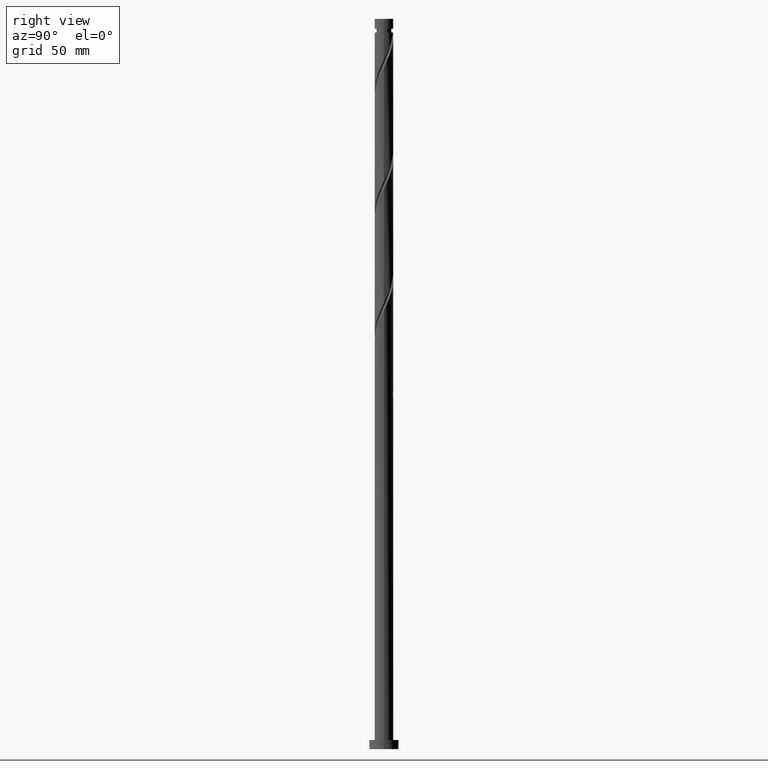
[diagram: clean part render]
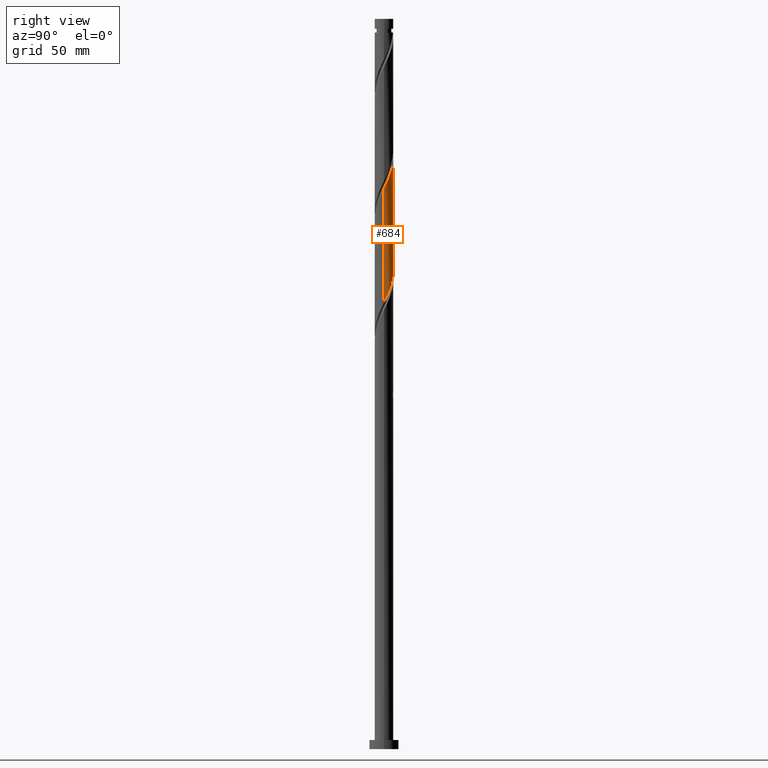
[diagram: same view with one face highlighted and labeled with its STEP entity id]
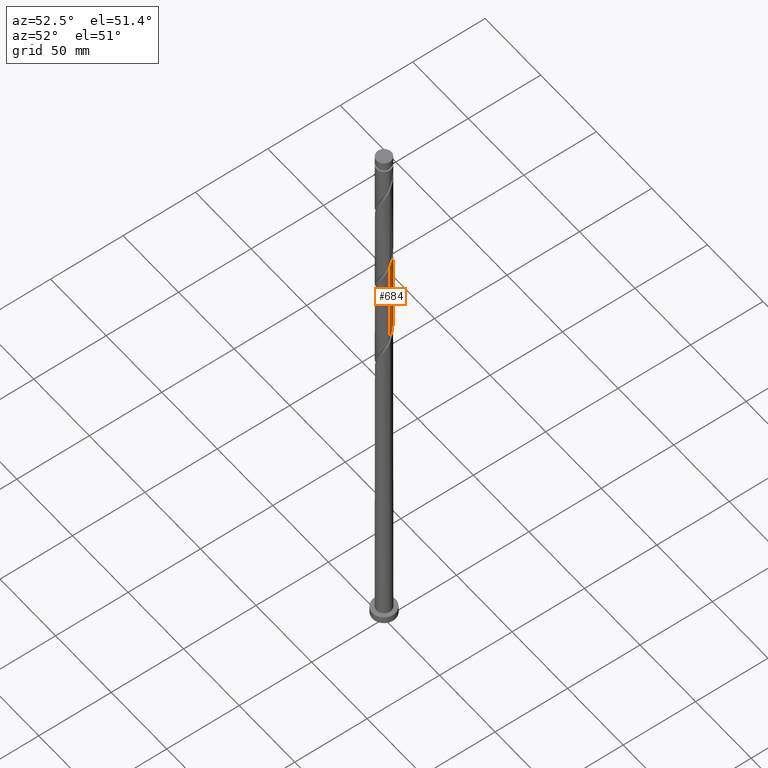
[diagram: same view with one face highlighted and labeled with its STEP entity id]
A machine part, right view. The second image highlights one B-rep face of the part: STEP entity #684.
A second angle (auxiliary view) of the same face is appended — the face is thin or edge-on in the first view.
In plain terms, the highlighted cylindrical surface (edge-blend (fillet) strip) has radius 5.1 mm, axis along (-0, -0, -1).
Its self-contained STEP definition (entity closure, byte-faithful):
#17 = CARTESIAN_POINT ( 'NONE',  ( -3.396524602074726396, 3.841998243563403914, 331.4106322817596038 ) ) ;
#20 = CARTESIAN_POINT ( 'NONE',  ( -1.629005779183733349, 4.862475711757238805, 264.7439656150929181 ) ) ;
#31 = CARTESIAN_POINT ( 'NONE',  ( 4.665561090286799661, 2.128349028905950568, 249.1884100595374036 ) ) ;
#93 = DIRECTION ( 'NONE',  ( -1.000000000000000000, 0.000000000000000000, 0.000000000000000000 ) ) ;
#125 = CARTESIAN_POINT ( 'NONE',  ( 4.439763080642554094, 2.509682009291899440, 312.5217433928706896 ) ) ;
#145 = ORIENTED_EDGE ( 'NONE', *, *, #837, .F. ) ;
#168 = CARTESIAN_POINT ( 'NONE',  ( -3.465917878084596726, 3.779516257197027773, 269.1884100595373752 ) ) ;
#229 = CARTESIAN_POINT ( 'NONE',  ( 4.835838561039002670, 1.620081915079673918, 248.0772989484262609 ) ) ;
#238 = FACE_OUTER_BOUND ( 'NONE', #1738, .T. ) ;
#245 = CARTESIAN_POINT ( 'NONE',  ( -5.100000000000010303, -8.580390451461796036E-15, 340.3963001493492584 ) ) ;
#268 = CARTESIAN_POINT ( 'NONE',  ( 5.100000000000010303, 3.617516531800965792E-15, 307.0629668160158872 ) ) ;
#269 = EDGE_CURVE ( 'NONE', #975, #363, #1783, .T. ) ;
#279 = CARTESIAN_POINT ( 'NONE',  ( -5.100000000000011191, 0.2905660609767968805, 339.7907088399646227 ) ) ;
#283 = CARTESIAN_POINT ( 'NONE',  ( 1.540198153706611839, 4.891331058450428593, 258.0772989484262325 ) ) ;
#290 = CARTESIAN_POINT ( 'NONE',  ( -4.121098741290865952, 3.051864191043565544, 333.6328545039818323 ) ) ;
#313 = CARTESIAN_POINT ( 'NONE',  ( -5.100000000000010303, -8.580390451461796036E-15, 340.3963001493492584 ) ) ;
#314 = VECTOR ( 'NONE', #583, 1000.000000000000000 ) ;
#331 = CARTESIAN_POINT ( 'NONE',  ( -4.703541288989194769, 2.043044105940179822, 273.6328545039818323 ) ) ;
#363 = VERTEX_POINT ( 'NONE', #1777 ) ;
#373 = CARTESIAN_POINT ( 'NONE',  ( 5.066997856243808052, 0.5792518664800752060, 245.8550767262040324 ) ) ;
#382 = CARTESIAN_POINT ( 'NONE',  ( 4.121098741290860623, 3.051864191043555774, 251.4106322817596890 ) ) ;
#429 = CARTESIAN_POINT ( 'NONE',  ( 4.175984872295905426, 2.976319912643619947, 313.6328545039818891 ) ) ;
#431 = CARTESIAN_POINT ( 'NONE',  ( 0.4895762179909056155, 5.104668941549565631, 260.2995211706484611 ) ) ;
#444 = CARTESIAN_POINT ( 'NONE',  ( 3.758811671682789957, 3.446931217303477180, 252.5217433928707180 ) ) ;
#452 = CARTESIAN_POINT ( 'NONE',  ( -4.835838561039008887, 1.620081915079681245, 336.9661878373150330 ) ) ;
#466 = CARTESIAN_POINT ( 'NONE',  ( 0.5824425476983406957, 5.094908296983747142, 322.5217433928708033 ) ) ;
#479 = CARTESIAN_POINT ( 'NONE',  ( 4.703541288989208979, 2.043044105940178046, 311.4106322817596606 ) ) ;
#532 =( BOUNDED_CURVE ( )  B_SPLINE_CURVE ( 2, ( #268, #1236, #1682, #1539, #1427, #479, #125, #429, #1067, #787, #762, #1835, #1869, #778, #1413, #466, #1402, #1247, #1101, #909, #752, #1674, #900, #17, #2008, #290, #1570, #920, #452, #1704, #642, #279, #313 ),
 .UNSPECIFIED., .F., .T. ) 
 B_SPLINE_CURVE_WITH_KNOTS ( ( 3, 2, 2, 2, 2, 2, 2, 2, 2, 2, 2, 2, 2, 2, 2, 2, 3 ),
 ( 0.4295286012773114059, 0.4333333333333333481, 0.4416666666666666519, 0.4499999999999999556, 0.4583333333333333703, 0.4666666666666666741, 0.4749999999999999778, 0.4833333333333332815, 0.4916666666666666963, 0.5000000000000000000, 0.5083333333333333037, 0.5166666666666666075, 0.5250000000000000222, 0.5333333333333333259, 0.5416666666666667407, 0.5500000000000000444, 0.5545286012773116280 ),
 .UNSPECIFIED. ) 
 CURVE ( )  GEOMETRIC_REPRESENTATION_ITEM ( )  RATIONAL_B_SPLINE_CURVE ( ( 0.9066196499552303667, 0.9068171577856432020, 0.9090909090909421453, 0.9041108139711903080, 0.9090909090909421453, 0.9041108139711903080, 0.9090909090909421453, 0.9041108139711903080, 0.9090909090909421453, 0.9041108139711903080, 0.9090909090909421453, 0.9041108139711903080, 0.9090909090909421453, 0.9041108139711903080, 0.9090909090909421453, 0.9041108139711903080, 0.9090909090909421453, 0.9041108139711903080, 0.9090909090909421453, 0.9041108139711903080, 0.9090909090909421453, 0.9041108139711903080, 0.9090909090909421453, 0.9041108139711903080, 0.9090909090909421453, 0.9041108139711903080, 0.9090909090909421453, 0.9041108139711903080, 0.9090909090909421453, 0.9041108139711903080, 0.9090909090909421453, 0.9063845652764892513, 0.9066196499552303667 ) ) 
 REPRESENTATION_ITEM ( '' )  );
#553 = CARTESIAN_POINT ( 'NONE',  ( 0.000000000000000000, 0.000000000000000000, 400.0000000000000000 ) ) ;
#556 = CARTESIAN_POINT ( 'NONE',  ( -5.100000000000001421, 0.000000000000000000, 400.0000000000000000 ) ) ;
#559 = VERTEX_POINT ( 'NONE', #245 ) ;
#576 = VECTOR ( 'NONE', #1820, 1000.000000000000000 ) ;
#583 = DIRECTION ( 'NONE',  ( -0.000000000000000000, -0.000000000000000000, -1.000000000000000000 ) ) ;
#604 = CARTESIAN_POINT ( 'NONE',  ( 3.396524602074722399, 3.841998243563394144, 253.6328545039818039 ) ) ;
#622 = CARTESIAN_POINT ( 'NONE',  ( -5.099999999999999645, -6.517509123410059360E-15, 277.9805199697255489 ) ) ;
#642 = CARTESIAN_POINT ( 'NONE',  ( -5.066997856243816045, 0.5792518664800782036, 339.1884100595373184 ) ) ;
#684 = ADVANCED_FACE ( 'NONE', ( #238 ), #1497, .T. ) ;
#733 = CARTESIAN_POINT ( 'NONE',  ( 5.100000000000001421, 6.245698675651501825E-16, 400.0000000000000000 ) ) ;
#752 = CARTESIAN_POINT ( 'NONE',  ( -2.031852096560608611, 4.677774797668475593, 328.0772989484264031 ) ) ;
#754 = CARTESIAN_POINT ( 'NONE',  ( 2.960015320744665779, 4.153108390224945268, 254.7439656150929466 ) ) ;
#762 = CARTESIAN_POINT ( 'NONE',  ( 3.035145759683210098, 4.098522931188395724, 316.9661878373151467 ) ) ;
#778 = CARTESIAN_POINT ( 'NONE',  ( 1.629005779183740232, 4.862475711757246799, 320.2995211706485748 ) ) ;
#787 = CARTESIAN_POINT ( 'NONE',  ( 3.465917878084604720, 3.779516257197033546, 315.8550767262040040 ) ) ;
#837 = EDGE_CURVE ( 'NONE', #1462, #559, #532, .T. ) ;
#900 = CARTESIAN_POINT ( 'NONE',  ( -2.960015320744666223, 4.153108390224957702, 330.2995211706484042 ) ) ;
#909 = CARTESIAN_POINT ( 'NONE',  ( -1.540198153706609618, 4.891331058450441915, 326.9661878373150898 ) ) ;
#912 = CARTESIAN_POINT ( 'NONE',  ( 2.031852096560608611, 4.677774797668464934, 256.9661878373151467 ) ) ;
#920 = CARTESIAN_POINT ( 'NONE',  ( -4.665561090286807655, 2.128349028905955898, 335.8550767262040608 ) ) ;
#922 = CARTESIAN_POINT ( 'NONE',  ( -0.04643316485371556945, 5.099788619266650613, 261.4106322817596038 ) ) ;
#962 = CARTESIAN_POINT ( 'NONE',  ( -1.105724163441035079, 4.978692004370486757, 263.6328545039818323 ) ) ;
#975 = VERTEX_POINT ( 'NONE', #1717 ) ;
#995 = CARTESIAN_POINT ( 'NONE',  ( 5.099999999999998757, 0.2905660609768065394, 245.2527779457767849 ) ) ;
#1067 = CARTESIAN_POINT ( 'NONE',  ( 3.820951375190254407, 3.377918084920323416, 314.7439656150928613 ) ) ;
#1101 = CARTESIAN_POINT ( 'NONE',  ( -1.014887185848756035, 4.998000000000008214, 325.8550767262040040 ) ) ;
#1105 = CARTESIAN_POINT ( 'NONE',  ( -5.025530381258454860, 1.020477468193841775, 275.8550767262040608 ) ) ;
#1168 = CARTESIAN_POINT ( 'NONE',  ( 5.099999999999999645, 4.275246810310268444E-15, 244.6471866363922345 ) ) ;
#1172 = CARTESIAN_POINT ( 'NONE',  ( 5.100000000000010303, 3.617516531800965792E-15, 307.0629668160158872 ) ) ;
#1211 = LINE ( 'NONE', #733, #576 ) ;
#1230 = CARTESIAN_POINT ( 'NONE',  ( -0.5824425476983373651, 5.094908296983734708, 262.5217433928706896 ) ) ;
#1232 = ORIENTED_EDGE ( 'NONE', *, *, #269, .F. ) ;
#1236 = CARTESIAN_POINT ( 'NONE',  ( 5.100000000000011191, 0.2440043963624162204, 307.5715153415798682 ) ) ;
#1247 = CARTESIAN_POINT ( 'NONE',  ( -0.4895762179909013967, 5.104668941549578953, 324.7439656150929181 ) ) ;
#1251 = CARTESIAN_POINT ( 'NONE',  ( -5.076705030977432642, 0.4868942682435472569, 276.9661878373151467 ) ) ;
#1268 = ORIENTED_EDGE ( 'NONE', *, *, #1889, .T. ) ;
#1277 = CARTESIAN_POINT ( 'NONE',  ( -2.116689710232770416, 4.640002658468494801, 265.8550767262040040 ) ) ;
#1402 = CARTESIAN_POINT ( 'NONE',  ( 0.04643316485371956626, 5.099788619266663048, 323.6328545039817186 ) ) ;
#1407 = AXIS2_PLACEMENT_3D ( 'NONE', #553, #1507, #93 ) ;
#1413 = CARTESIAN_POINT ( 'NONE',  ( 1.105724163441041963, 4.978692004370493862, 321.4106322817596038 ) ) ;
#1427 = CARTESIAN_POINT ( 'NONE',  ( 4.864535835123834140, 1.531760787067009799, 310.2995211706485179 ) ) ;
#1429 = CARTESIAN_POINT ( 'NONE',  ( -2.604373641281807039, 4.417529605179755237, 266.9661878373152604 ) ) ;
#1462 = VERTEX_POINT ( 'NONE', #1172 ) ;
#1464 = CARTESIAN_POINT ( 'NONE',  ( 4.393329915788831030, 2.590106609974751617, 250.2995211706484611 ) ) ;
#1497 = CYLINDRICAL_SURFACE ( 'NONE', #1407, 5.100000000000001421 ) ;
#1507 = DIRECTION ( 'NONE',  ( -0.000000000000000000, -0.000000000000000000, -1.000000000000000000 ) ) ;
#1539 = CARTESIAN_POINT ( 'NONE',  ( 5.025530381258464629, 1.020477468193841997, 309.1884100595373752 ) ) ;
#1541 = CARTESIAN_POINT ( 'NONE',  ( 2.523506039414606050, 4.464218536886502164, 255.8550767262040608 ) ) ;
#1562 = CARTESIAN_POINT ( 'NONE',  ( -4.864535835123822594, 1.531760787067011131, 274.7439656150930318 ) ) ;
#1570 = CARTESIAN_POINT ( 'NONE',  ( -4.393329915788834583, 2.590106609974760055, 334.7439656150929750 ) ) ;
#1573 = CARTESIAN_POINT ( 'NONE',  ( -3.820951375190244637, 3.377918084920321196, 270.2995211706485179 ) ) ;
#1674 = CARTESIAN_POINT ( 'NONE',  ( -2.523506039414608271, 4.464218536886512823, 329.1884100595374889 ) ) ;
#1676 = CARTESIAN_POINT ( 'NONE',  ( 1.014887185848757811, 4.998000000000000220, 259.1884100595374321 ) ) ;
#1682 = CARTESIAN_POINT ( 'NONE',  ( 5.076705030977442412, 0.4868942682435424829, 308.0772989484262894 ) ) ;
#1704 = CARTESIAN_POINT ( 'NONE',  ( -5.006116031791213672, 1.111814801253408147, 338.0772989484262894 ) ) ;
#1707 = CARTESIAN_POINT ( 'NONE',  ( -4.175984872295892991, 2.976319912643616838, 271.4106322817596038 ) ) ;
#1717 = CARTESIAN_POINT ( 'NONE',  ( -5.099999999999999645, -6.517509123410059360E-15, 277.9805199697255489 ) ) ;
#1738 = EDGE_LOOP ( 'NONE', ( #145, #1268, #1232, #1836 ) ) ;
#1766 = CARTESIAN_POINT ( 'NONE',  ( 5.006116031791203902, 1.111814801253401486, 246.9661878373151751 ) ) ;
#1777 = CARTESIAN_POINT ( 'NONE',  ( 5.099999999999999645, 4.275246810310268444E-15, 244.6471866363922345 ) ) ;
#1783 =( BOUNDED_CURVE ( )  B_SPLINE_CURVE ( 2, ( #622, #1862, #1251, #1105, #1562, #331, #1849, #1707, #1573, #168, #1989, #1429, #1277, #20, #962, #1230, #922, #431, #1676, #283, #912, #1541, #754, #604, #444, #382, #1464, #31, #229, #1766, #373, #995, #1168 ),
 .UNSPECIFIED., .F., .T. ) 
 B_SPLINE_CURVE_WITH_KNOTS ( ( 3, 2, 2, 2, 2, 2, 2, 2, 2, 2, 2, 2, 2, 2, 2, 2, 3 ),
 ( 0.6795286012773114059, 0.6833333333333333481, 0.6916666666666666519, 0.6999999999999999556, 0.7083333333333333703, 0.7166666666666666741, 0.7249999999999999778, 0.7333333333333332815, 0.7416666666666666963, 0.7500000000000000000, 0.7583333333333333037, 0.7666666666666667185, 0.7750000000000000222, 0.7833333333333333259, 0.7916666666666666297, 0.8000000000000000444, 0.8045286012773114059 ),
 .UNSPECIFIED. ) 
 CURVE ( )  GEOMETRIC_REPRESENTATION_ITEM ( )  RATIONAL_B_SPLINE_CURVE ( ( 0.9066196499552228172, 0.9068171577856356524, 0.9090909090909344847, 0.9041108139711828695, 0.9090909090909344847, 0.9041108139711828695, 0.9090909090909344847, 0.9041108139711828695, 0.9090909090909344847, 0.9041108139711828695, 0.9090909090909344847, 0.9041108139711828695, 0.9090909090909344847, 0.9041108139711828695, 0.9090909090909344847, 0.9041108139711828695, 0.9090909090909344847, 0.9041108139711828695, 0.9090909090909344847, 0.9041108139711828695, 0.9090909090909344847, 0.9041108139711828695, 0.9090909090909344847, 0.9041108139711828695, 0.9090909090909344847, 0.9041108139711828695, 0.9090909090909344847, 0.9041108139711828695, 0.9090909090909344847, 0.9041108139711828695, 0.9090909090909344847, 0.9063845652764817018, 0.9066196499552228172 ) ) 
 REPRESENTATION_ITEM ( '' )  );
#1820 = DIRECTION ( 'NONE',  ( -0.000000000000000000, -0.000000000000000000, -1.000000000000000000 ) ) ;
#1835 = CARTESIAN_POINT ( 'NONE',  ( 2.604373641281815921, 4.417529605179759677, 318.0772989484264031 ) ) ;
#1836 = ORIENTED_EDGE ( 'NONE', *, *, #1967, .F. ) ;
#1849 = CARTESIAN_POINT ( 'NONE',  ( -4.439763080642545212, 2.509682009291897664, 272.5217433928707464 ) ) ;
#1862 = CARTESIAN_POINT ( 'NONE',  ( -5.100000000000000533, 0.2440043963624206336, 277.4719714441614542 ) ) ;
#1869 = CARTESIAN_POINT ( 'NONE',  ( 2.116689710232775745, 4.640002658468502794, 319.1884100595373752 ) ) ;
#1889 = EDGE_CURVE ( 'NONE', #1462, #363, #1211, .T. ) ;
#1954 = LINE ( 'NONE', #556, #314 ) ;
#1967 = EDGE_CURVE ( 'NONE', #559, #975, #1954, .T. ) ;
#1989 = CARTESIAN_POINT ( 'NONE',  ( -3.035145759683201661, 4.098522931188391283, 268.0772989484262325 ) ) ;
#2008 = CARTESIAN_POINT ( 'NONE',  ( -3.758811671682796618, 3.446931217303483397, 332.5217433928706896 ) ) ;